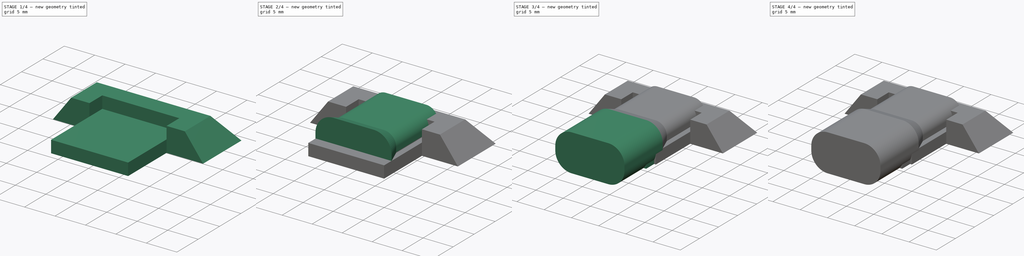
[diagram: build sequence overview — one tinted view per stage of 4, left to right]
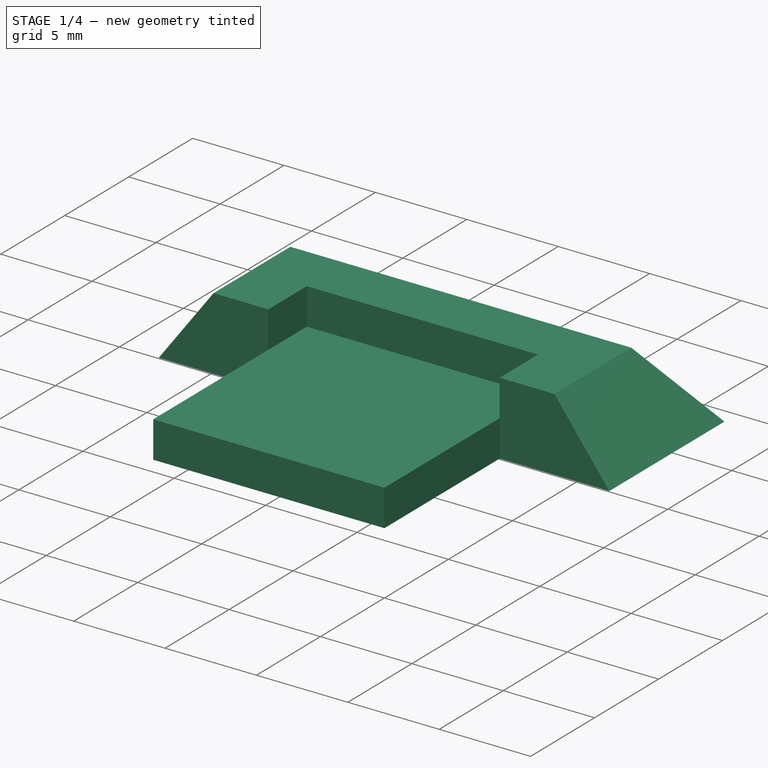
[diagram: stage 1 of 4 — iso view after this stage's code; geometry added in this stage tinted green]
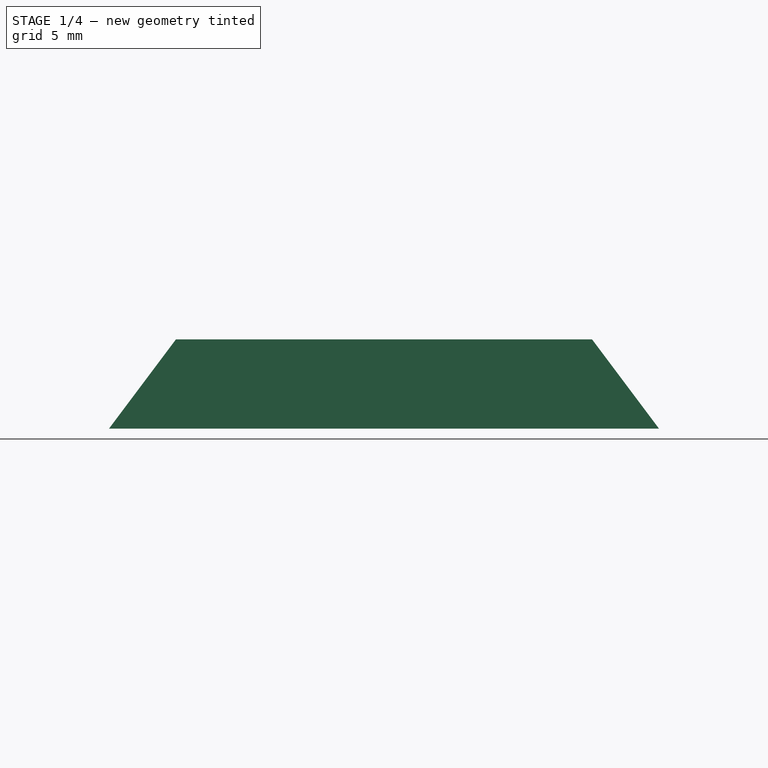
[diagram: stage 1 of 4 — front view after this stage's code; geometry added in this stage tinted green]
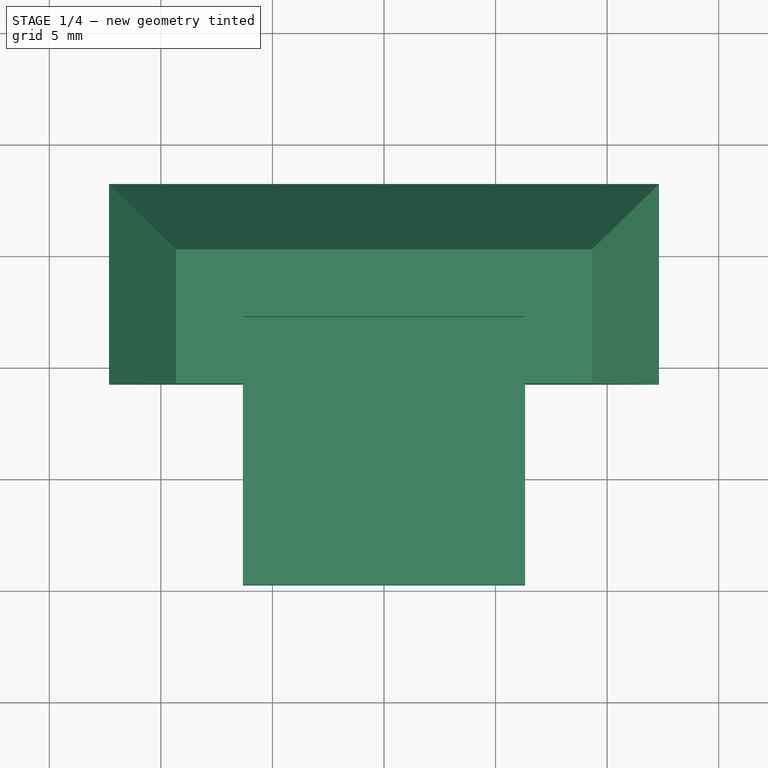
[diagram: stage 1 of 4 — top view after this stage's code; geometry added in this stage tinted green]
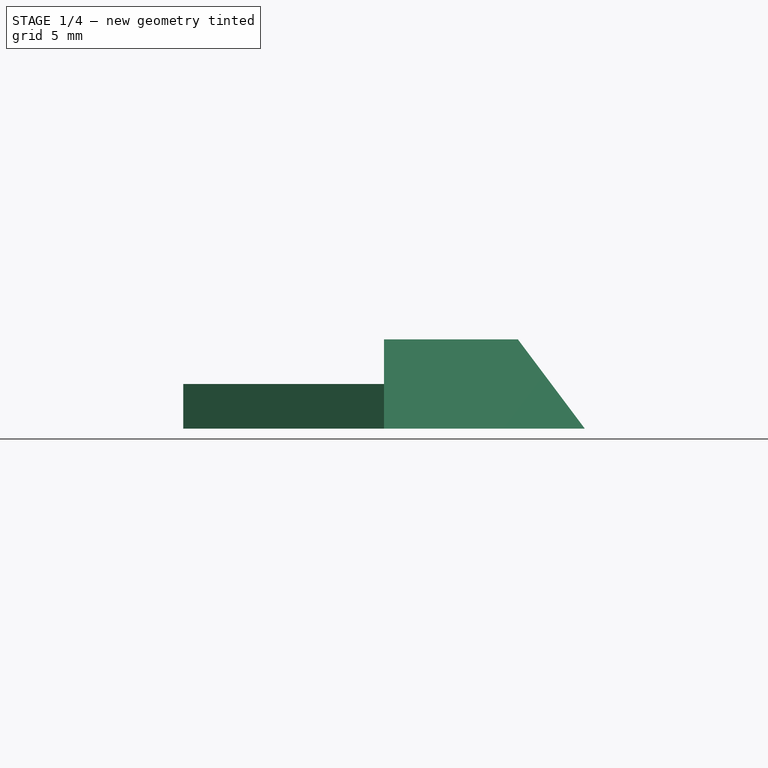
[diagram: stage 1 of 4 — right view after this stage's code; geometry added in this stage tinted green]
FCSTD DOCUMENT  (FreeCAD 0.21R33668 +26 (Git))
Label: USBC-Breakout
License: All rights reserved
LicenseURL: http://en.wikipedia.org/wiki/All_rights_reserved
objects: Sketcher::SketchObject×8, PartDesign::Pad×5, PartDesign::Body×3, Part::Refine×3, PartDesign::AdditiveLoft×2, PartDesign::Pocket×1, PartDesign::LinearPattern×1, Spreadsheet::Sheet×1
note: 31 computed .brp shape members not serialized (recipe doc carries the construction recipe); baked Part::Feature solids carry a one-line shape summary decoded from their .brp

FEATURE [PartDesign::Body] Body  label="USBCBreakout"
  Group = -> [Sketch,Pad,Sketch001,Pad001,Sketch002,Pocket,LinearPattern]
  Origin = -> Origin
  Tip = -> LinearPattern
FEATURE [Part::Refine] Body001  label="USBCBreakoutNice"
  Source = -> Body
FEATURE [Spreadsheet::Sheet] Spreadsheet  label="S"
  cells = A1='Label; B1='Value; C1='Type; D1='Description; A2='StopperThk; B2(StopperThk)==3 mm; C2='Input; D2='Thickness of the stopper wall; A3='StopperHei; B3(StopperHei)==4 mm; C3='Input; D3='Height of the stopper off the floor; A4='StopperLen; B4(StopperLen)==3 mm; C4='Input; D4='Length that the stopper extends from the end; A5='LifterLen; B5(LifterLen)==12 mm; C5='Input; D5='Lifting pad to prop up the breakout board; A6='LifterHei; B6(LifterHei)==2 mm; C6='Input; D6='Lifting pad to prop up the breakout board; A8='USBWid; B8(USBWid)==10.7 mm; C8='Input; D8='USB-C Connector cutout; A9='USBHei; B9(USBHei)==4.8 mm; C9='Input; D9='USB-C Connector cutout; A10='USBRad; B10(USBRad)==2 mm; C10='Input; D10='USB-C Connector cutout; A11='USBChamDim1; B11(USBChamDim1)==1 mm; C11='Input; D11='USBC Connector Chamfer; A12='USBChamDim2; B12(USBChamDim2)==3 mm; C12='Input; A13='USBLen; B13(USBLen)==10 mm; C13='Input; D13='Length of the USB Connector cutout to penetrate wall
FEATURE [Sketcher::SketchObject] Sketch003
  AttachmentOffset = pos=(0,0,4) rot=(0,0,1;0rad)
  FullyConstrained = true
  MapMode = 5
  Placement = pos=(0,0,4) rot=(0,0,1;0rad)
  Support = -> [XY_Plane001]
  expr: .AttachmentOffset.Base.z = <<S>>.StopperHei
  expr: Constraints[17] = <<S>>.StopperThk
  expr: Constraints[18] = <<S>>.StopperLen
  expr: Constraints[23] = <<S>>.StopperThk
  sketch-geometry (9):
    g0: LineSegment StartX=-9.325 StartY=10.25 StartZ=0 EndX=9.325 EndY=10.25 EndZ=0
    g1: LineSegment StartX=9.325 StartY=10.25 StartZ=0 EndX=9.325 EndY=4.25 EndZ=0
    g2: LineSegment StartX=9.325 StartY=4.25 StartZ=0 EndX=6.325 EndY=4.25 EndZ=0
    g3: LineSegment StartX=6.325 StartY=4.25 StartZ=0 EndX=6.325 EndY=7.25 EndZ=0
    g4: LineSegment StartX=6.325 StartY=7.25 StartZ=0 EndX=-6.325 EndY=7.25 EndZ=0
    g5: LineSegment StartX=-6.325 StartY=7.25 StartZ=0 EndX=-6.325 EndY=4.25 EndZ=0
    g6: LineSegment StartX=-6.325 StartY=4.25 StartZ=0 EndX=-9.325 EndY=4.25 EndZ=0
    g7: LineSegment StartX=-9.325 StartY=4.25 StartZ=0 EndX=-9.325 EndY=10.25 EndZ=0
    g8: GeomPoint X=0 Y=7.25 Z=0
  constraints (25):
    c: Horizontal(g0)
    c: Coincident(g0,g1)
    c: Vertical(g1)
    c: Coincident(g1,g2)
    c: Horizontal(g2)
    c: Coincident(g2,g3)
    c: Vertical(g3)
    c: Coincident(g3,g4)
    c: Horizontal(g4)
    c: Coincident(g4,g5)
    c: Coincident(g5,g6)
    c: Horizontal(g6)
    c: Coincident(g6,g7)
    c: Coincident(g7,g0)
    c: Vertical(g7)
    c: Vertical(g5)
    c: Equal(g6,g2)
    c: DistanceX(g2,g2) = 3
    c: DistanceY(g3,g3) = 3
    c: Equal(g3,g5)
    c: PointOnObject(g8,g-2)
    c: DistanceY(g-1,g8) = 7.25
    c: Symmetric(g4,g3,g8)
    c: DistanceY(g3,g0) = 3
    c: DistanceX(g4,g4) = 12.65
FEATURE [Sketcher::SketchObject] Sketch004
  FullyConstrained = true
  MapMode = 5
  Support = -> [XY_Plane001]
  expr: Constraints[17] = <<S>>.StopperThk * 2
  expr: Constraints[18] = <<S>>.StopperLen
  expr: Constraints[23] = <<S>>.StopperThk * 2
  sketch-geometry (9):
    g0: LineSegment StartX=-12.325 StartY=13.25 StartZ=0 EndX=12.325 EndY=13.25 EndZ=0
    g1: LineSegment StartX=12.325 StartY=13.25 StartZ=0 EndX=12.325 EndY=4.25 EndZ=0
    g2: LineSegment StartX=12.325 StartY=4.25 StartZ=0 EndX=6.325 EndY=4.25 EndZ=0
    g3: LineSegment StartX=6.325 StartY=4.25 StartZ=0 EndX=6.325 EndY=7.25 EndZ=0
    g4: LineSegment StartX=6.325 StartY=7.25 StartZ=0 EndX=-6.325 EndY=7.25 EndZ=0
    g5: LineSegment StartX=-6.325 StartY=7.25 StartZ=0 EndX=-6.325 EndY=4.25 EndZ=0
    g6: LineSegment StartX=-6.325 StartY=4.25 StartZ=0 EndX=-12.325 EndY=4.25 EndZ=0
    g7: LineSegment StartX=-12.325 StartY=4.25 StartZ=0 EndX=-12.325 EndY=13.25 EndZ=0
    g8: GeomPoint X=0 Y=7.25 Z=0
  constraints (25):
    c: Horizontal(g0)
    c: Coincident(g0,g1)
    c: Vertical(g1)
    c: Coincident(g1,g2)
    c: Horizontal(g2)
    c: Coincident(g2,g3)
    c: Vertical(g3)
    c: Coincident(g3,g4)
    c: Horizontal(g4)
    c: Coincident(g4,g5)
    c: Coincident(g5,g6)
    c: Horizontal(g6)
    c: Coincident(g6,g7)
    c: Coincident(g7,g0)
    c: Vertical(g7)
    c: Vertical(g5)
    c: Equal(g6,g2)
    c: DistanceX(g2,g2) = 6
    c: DistanceY(g3,g3) = 3
    c: Equal(g3,g5)
    c: PointOnObject(g8,g-2)
    c: DistanceY(g-1,g8) = 7.25
    c: Symmetric(g4,g3,g8)
    c: DistanceY(g3,g0) = 6
    c: DistanceX(g4,g4) = 12.65
FEATURE [PartDesign::AdditiveLoft] AdditiveLoft
  Closed = false
  Profile = -> Sketch003
  Ruled = false
  Sections = -> [Sketch004]
FEATURE [PartDesign::Body] Body003  label="StopperCut"
  Group = -> [Sketch005,Sketch006,AdditiveLoft001,Pad002,Pad003]
  Origin = -> Origin002
  Placement = pos=(0,-18,0) rot=(0,0,1;0rad)
  Tip = -> Pad003
FEATURE [Part::Refine] Body005  label="StopperCutNice"
  Source = -> Body003
FEATURE [Sketcher::SketchObject] Sketch007
  ExternalGeometry = -> [AdditiveLoft]
  FullyConstrained = true
  MapMode = 5
  Placement = pos=(0,7.25,0) rot=(1,0,0;1.5708rad)
  Support = -> [AdditiveLoft]
  expr: .Constraints.LifterHei = <<S>>.LifterHei
  sketch-geometry (4):
    g0: LineSegment StartX=-6.325 StartY=0 StartZ=0 EndX=6.325 EndY=0 EndZ=0
    g1: LineSegment StartX=6.325 StartY=0 StartZ=0 EndX=6.325 EndY=2 EndZ=0
    g2: LineSegment StartX=6.325 StartY=2 StartZ=0 EndX=-6.325 EndY=2 EndZ=0
    g3: LineSegment StartX=-6.325 StartY=2 StartZ=0 EndX=-6.325 EndY=0 EndZ=0
  constraints (10):
    c: Coincident(g0,g1)
    c: Coincident(g1,g2)
    c: Coincident(g2,g3)
    c: Coincident(g3,g0)
    c: Horizontal(g2)
    c: Vertical(g1)
    c: Vertical(g3)
    c: Coincident(g0,g-3)
    c: Coincident(g0,g-3)
    c: DistanceY(g1,g1) = 2  'LifterHei'
FEATURE [PartDesign::Pad] Pad004
  BaseFeature = -> AdditiveLoft
  Direction = (0,-1,2e-16)
  Length = 12
  Length2 = 10
  Profile = -> Sketch007
  ReferenceAxis = -> Sketch007 [N_Axis]
  Type = 0
  expr: Length = <<S>>.LifterLen
FEATURE [PartDesign::Body] Body002  label="StopperAdd"
  Group = -> [Sketch003,Sketch004,AdditiveLoft,Sketch007,Pad004]
  Origin = -> Origin001
  Tip = -> Pad004
FEATURE [Part::Refine] Body004  label="StopperAddNice"
  Source = -> Body002
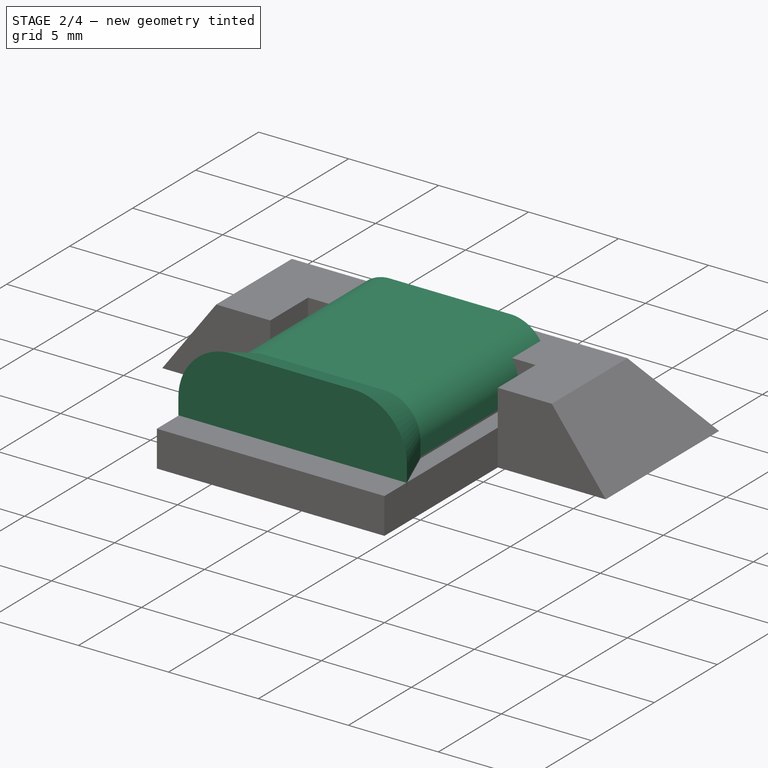
[diagram: stage 2 of 4 — iso view after this stage's code; geometry added in this stage tinted green]
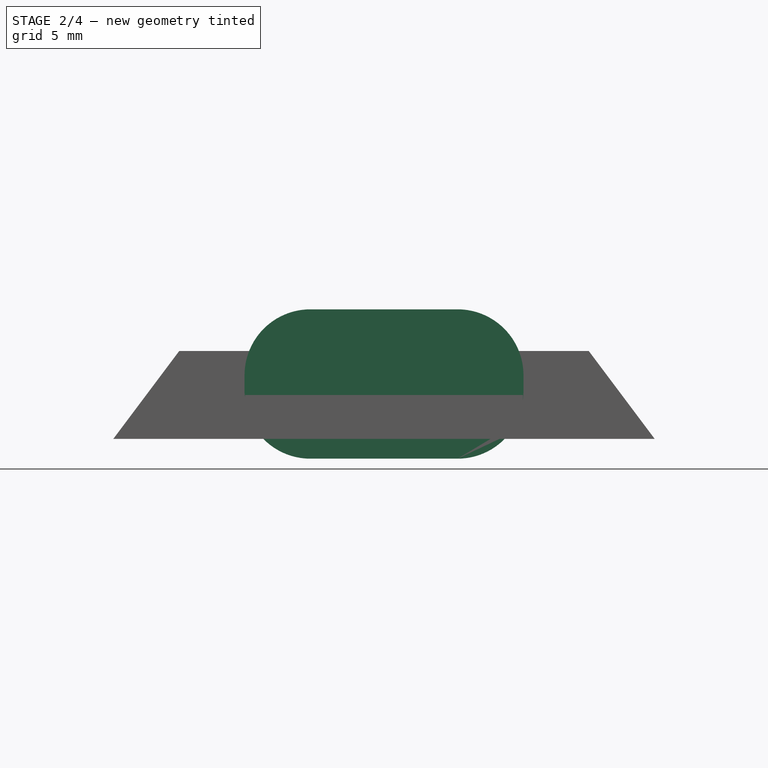
[diagram: stage 2 of 4 — front view after this stage's code; geometry added in this stage tinted green]
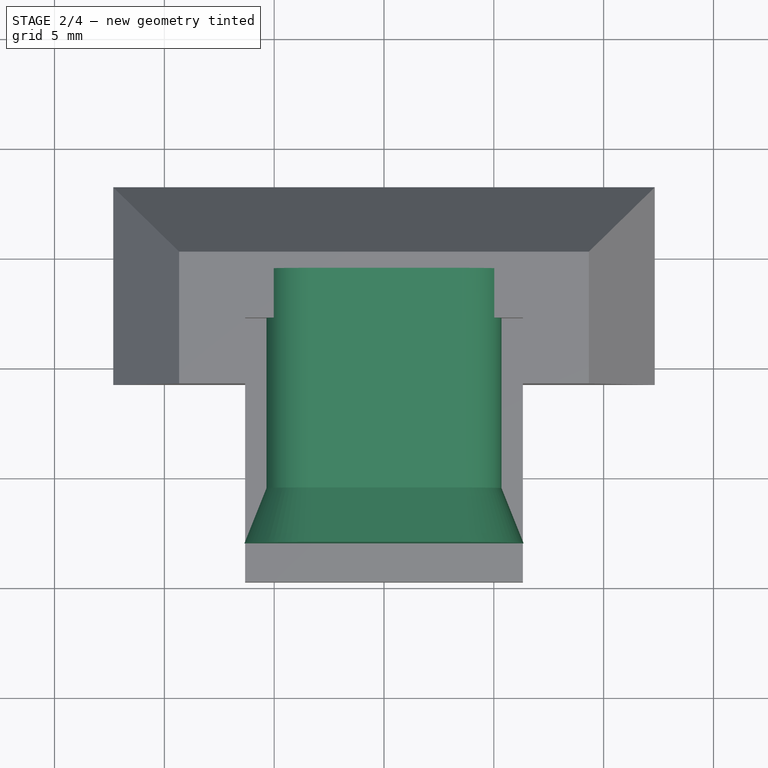
[diagram: stage 2 of 4 — top view after this stage's code; geometry added in this stage tinted green]
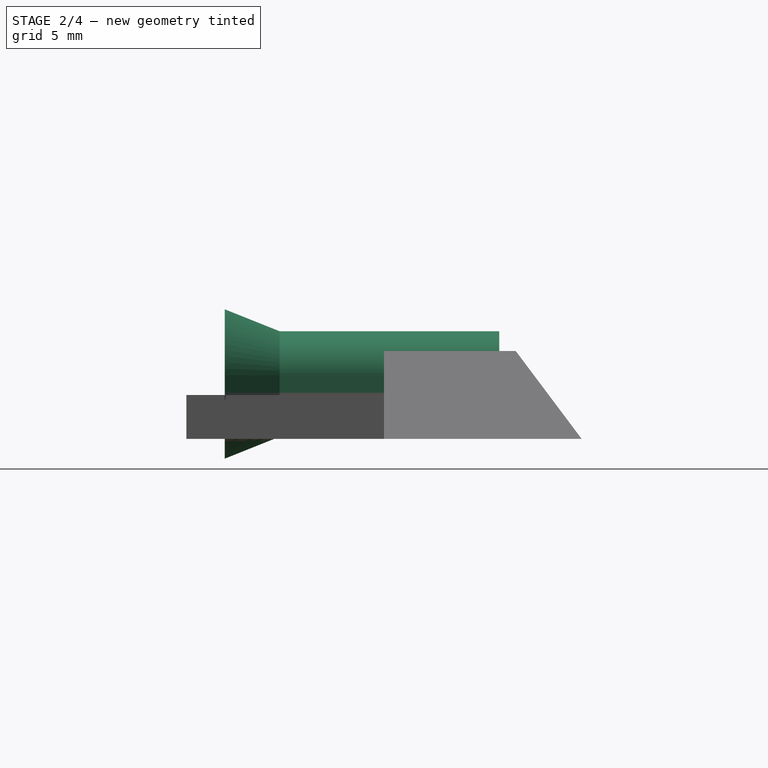
[diagram: stage 2 of 4 — right view after this stage's code; geometry added in this stage tinted green]
FEATURE [Sketcher::SketchObject] Sketch005  label="SketchOD"
  AttachmentOffset = pos=(0,0,3) rot=(0,0,1;0rad)
  FullyConstrained = true
  MapMode = 5
  Placement = pos=(0,-3,-7e-16) rot=(1,0,0;1.5708rad)
  Support = -> [XZ_Plane002]
  expr: .AttachmentOffset.Base.z = <<S>>.USBChamDim2
  expr: .Constraints.USBHei = <<S>>.USBHei + <<S>>.USBChamDim1 * 2
  expr: .Constraints.USBRad = <<S>>.USBRad + <<S>>.USBChamDim1
  expr: .Constraints.USBWid = <<S>>.USBWid + <<S>>.USBChamDim1 * 2
  sketch-geometry (11):
    g0: ArcOfCircle CenterX=-3.35 CenterY=2.9 CenterZ=0 NormalX=0 NormalY=0 NormalZ=1 AngleXU=0 Radius=3 StartAngle=1.5708 EndAngle=3.14159
    g1: LineSegment StartX=-3.35 StartY=5.9 StartZ=0 EndX=3.35 EndY=5.9 EndZ=0
    g2: ArcOfCircle CenterX=3.35 CenterY=2.9 CenterZ=0 NormalX=0 NormalY=0 NormalZ=1 AngleXU=0 Radius=3 StartAngle=1.124e-13 EndAngle=1.5708
    g3: LineSegment StartX=6.35 StartY=2.9 StartZ=0 EndX=6.35 EndY=2.1 EndZ=0
    g4: ArcOfCircle CenterX=3.35 CenterY=2.1 CenterZ=0 NormalX=0 NormalY=0 NormalZ=1 AngleXU=0 Radius=3 StartAngle=4.71239 EndAngle=6.28319
    g5: LineSegment StartX=3.35 StartY=-0.9 StartZ=0 EndX=-3.35 EndY=-0.9 EndZ=0
    g6: ArcOfCircle CenterX=-3.35 CenterY=2.1 CenterZ=0 NormalX=0 NormalY=0 NormalZ=1 AngleXU=0 Radius=3 StartAngle=3.14159 EndAngle=4.71239
    g7: LineSegment StartX=-6.35 StartY=2.1 StartZ=0 EndX=-6.35 EndY=2.9 EndZ=0
    g8: GeomPoint X=-6.35 Y=5.9 Z=0
    g9: GeomPoint X=6.35 Y=-0.9 Z=0
    g10: GeomPoint X=0 Y=2.5 Z=0
  constraints (25):
    c: Tangent(g0,g1) = 1.5708
    c: Tangent(g1,g2) = 1.5708
    c: Tangent(g2,g3) = 1.5708
    c: Tangent(g3,g4) = 1.5708
    c: Tangent(g4,g5) = 1.5708
    c: Tangent(g5,g6) = 1.5708
    c: Tangent(g6,g7) = 1.5708
    c: Tangent(g7,g0) = 1.5708
    c: Horizontal(g1)
    c: Horizontal(g5)
    c: Vertical(g3)
    c: Vertical(g7)
    c: Equal(g0,g2)
    c: Equal(g2,g4)
    c: Equal(g4,g6)
    c: PointOnObject(g8,g1)
    c: PointOnObject(g8,g7)
    c: PointOnObject(g9,g3)
    c: PointOnObject(g9,g5)
    c: Radius(g2) = 3  'USBRad'
    c: DistanceX(g8,g9) = 12.7  'USBWid'
    c: DistanceY(g9,g8) = 6.8  'USBHei'
    c: PointOnObject(g10,g-2)
    c: DistanceY(g-1,g10) = 2.5
    c: Symmetric(g8,g9,g10)
FEATURE [Sketcher::SketchObject] Sketch006  label="SketchID"
  AttachmentOffset = pos=(0,0,0.5) rot=(0,0,1;0rad)
  FullyConstrained = true
  MapMode = 5
  Placement = pos=(0,-0.5,-1e-16) rot=(1,0,0;1.5708rad)
  Support = -> [XZ_Plane002]
  expr: .Constraints.USBHei = <<S>>.USBHei
  expr: .Constraints.USBRad = <<S>>.USBRad
  expr: .Constraints.USBWid = <<S>>.USBWid
  sketch-geometry (11):
    g0: ArcOfCircle CenterX=-3.35 CenterY=2.9 CenterZ=0 NormalX=0 NormalY=0 NormalZ=1 AngleXU=0 Radius=2 StartAngle=1.5708 EndAngle=3.14159
    g1: LineSegment StartX=-3.35 StartY=4.9 StartZ=0 EndX=3.35 EndY=4.9 EndZ=0
    g2: ArcOfCircle CenterX=3.35 CenterY=2.9 CenterZ=0 NormalX=0 NormalY=0 NormalZ=1 AngleXU=0 Radius=2 StartAngle=0 EndAngle=1.5708
    g3: LineSegment StartX=5.35 StartY=2.9 StartZ=0 EndX=5.35 EndY=2.1 EndZ=0
    g4: ArcOfCircle CenterX=3.35 CenterY=2.1 CenterZ=0 NormalX=0 NormalY=0 NormalZ=1 AngleXU=0 Radius=2 StartAngle=4.71239 EndAngle=6.28319
    g5: LineSegment StartX=3.35 StartY=0.1 StartZ=0 EndX=-3.35 EndY=0.1 EndZ=0
    g6: ArcOfCircle CenterX=-3.35 CenterY=2.1 CenterZ=0 NormalX=0 NormalY=0 NormalZ=1 AngleXU=0 Radius=2 StartAngle=3.14159 EndAngle=4.71239
    g7: LineSegment StartX=-5.35 StartY=2.1 StartZ=0 EndX=-5.35 EndY=2.9 EndZ=0
    g8: GeomPoint X=-5.35 Y=4.9 Z=0
    g9: GeomPoint X=5.35 Y=0.1 Z=0
    g10: GeomPoint X=0 Y=2.5 Z=0
  constraints (25):
    c: Tangent(g0,g1) = 1.5708
    c: Tangent(g1,g2) = 1.5708
    c: Tangent(g2,g3) = 1.5708
    c: Tangent(g3,g4) = 1.5708
    c: Tangent(g4,g5) = 1.5708
    c: Tangent(g5,g6) = 1.5708
    c: Tangent(g6,g7) = 1.5708
    c: Tangent(g7,g0) = 1.5708
    c: Horizontal(g1)
    c: Horizontal(g5)
    c: Vertical(g3)
    c: Vertical(g7)
    c: Equal(g0,g2)
    c: Equal(g2,g4)
    c: Equal(g4,g6)
    c: PointOnObject(g8,g1)
    c: PointOnObject(g8,g7)
    c: PointOnObject(g9,g3)
    c: PointOnObject(g9,g5)
    c: Radius(g2) = 2  'USBRad'
    c: DistanceX(g8,g9) = 10.7  'USBWid'
    c: DistanceY(g9,g8) = 4.8  'USBHei'
    c: PointOnObject(g10,g-2)
    c: DistanceY(g-1,g10) = 2.5
    c: Symmetric(g8,g9,g10)
FEATURE [PartDesign::AdditiveLoft] AdditiveLoft001
  Closed = false
  Placement = pos=(0,0,0) rot=(1,0,0;1.5708rad)
  Profile = -> Sketch005
  Ruled = false
  Sections = -> [Sketch006]
FEATURE [PartDesign::Pad] Pad002  label="PadInside"
  BaseFeature = -> AdditiveLoft001
  Direction = (0,1,2e-16)
  Length = 10
  Length2 = 10
  Placement = pos=(0,0,0) rot=(1,0,0;1.5708rad)
  Profile = -> AdditiveLoft001 [Face3]
  Type = 0
  expr: Length = <<S>>.USBLen
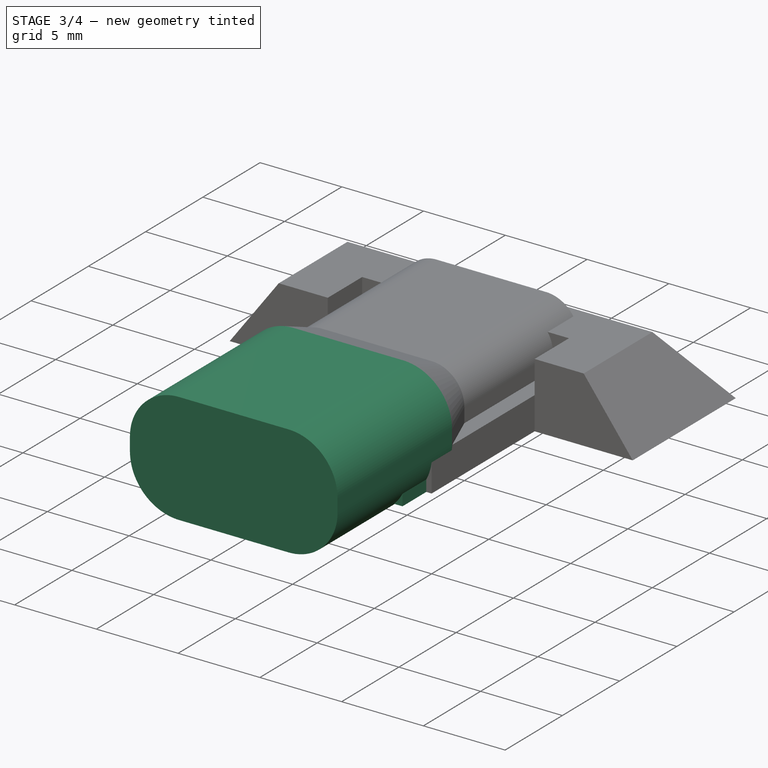
[diagram: stage 3 of 4 — iso view after this stage's code; geometry added in this stage tinted green]
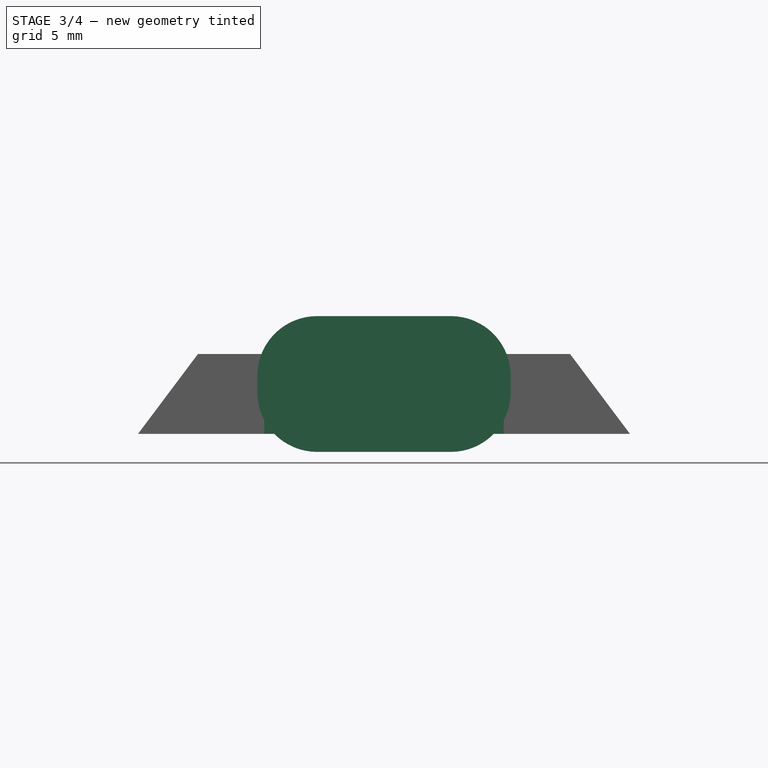
[diagram: stage 3 of 4 — front view after this stage's code; geometry added in this stage tinted green]
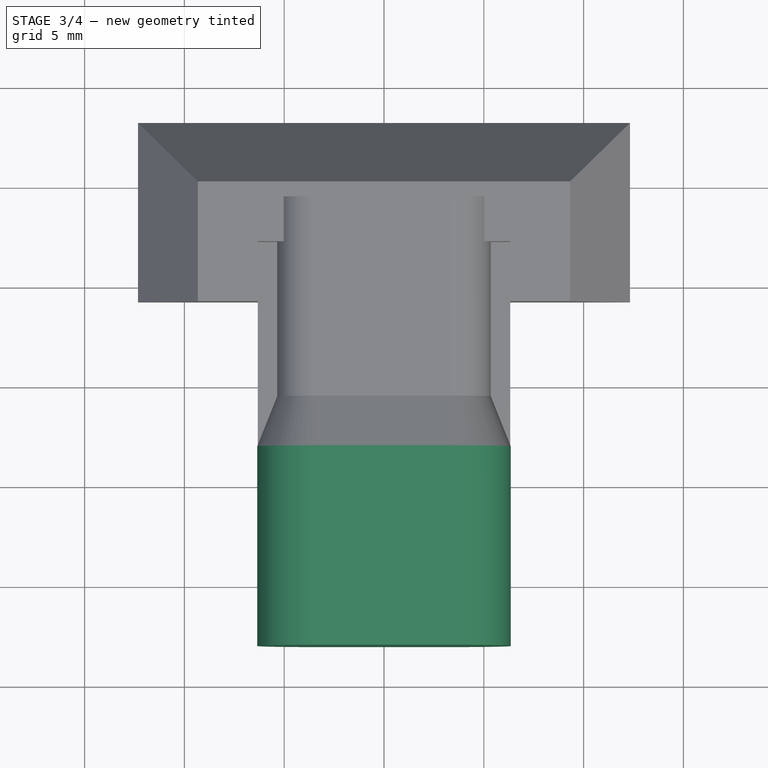
[diagram: stage 3 of 4 — top view after this stage's code; geometry added in this stage tinted green]
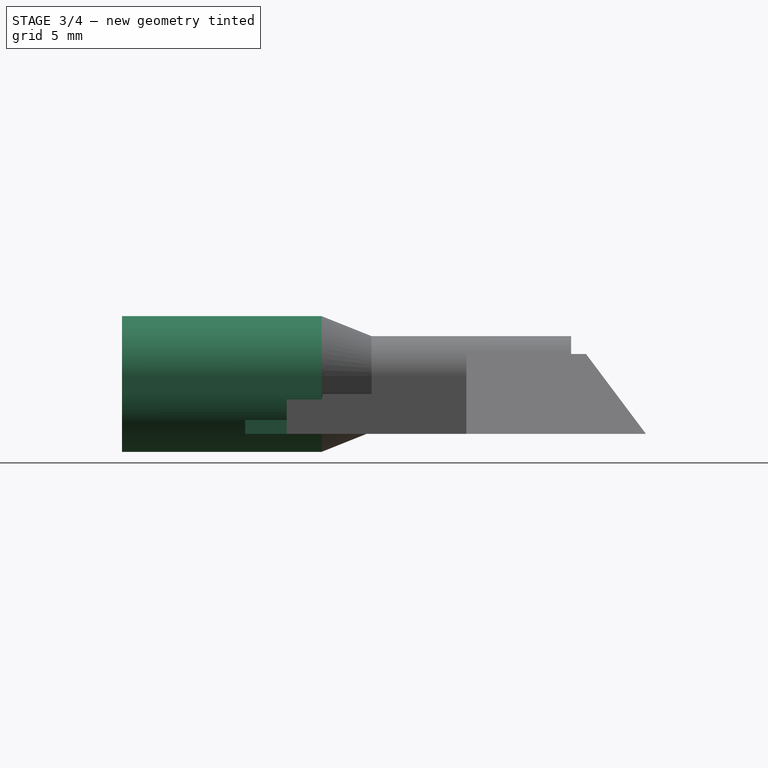
[diagram: stage 3 of 4 — right view after this stage's code; geometry added in this stage tinted green]
FEATURE [Sketcher::SketchObject] Sketch
  FullyConstrained = true
  MapMode = 5
  Support = -> [XY_Plane]
  sketch-geometry (4):
    g0: LineSegment StartX=-6 StartY=6.83 StartZ=0 EndX=6 EndY=6.83 EndZ=0
    g1: LineSegment StartX=6 StartY=6.83 StartZ=0 EndX=6 EndY=-6.83 EndZ=0
    g2: LineSegment StartX=6 StartY=-6.83 StartZ=0 EndX=-6 EndY=-6.83 EndZ=0
    g3: LineSegment StartX=-6 StartY=-6.83 StartZ=0 EndX=-6 EndY=6.83 EndZ=0
  constraints (11):
    c: Coincident(g0,g1)
    c: Coincident(g1,g2)
    c: Coincident(g2,g3)
    c: Coincident(g3,g0)
    c: Horizontal(g0)
    c: Horizontal(g2)
    c: Vertical(g1)
    c: Vertical(g3)
    c: Symmetric(g0,g1,g-1)
    c: DistanceX(g0,g0) = 12
    c: DistanceY(g3,g3) = 13.66
FEATURE [PartDesign::Pad] Pad  label="Board"
  Direction = (0,0,1)
  Length = 1
  Length2 = 10
  Profile = -> Sketch
  ReferenceAxis = -> Sketch [N_Axis]
  Type = 0
FEATURE [Sketcher::SketchObject] Sketch001
  AttachmentOffset = pos=(0,0,0.7) rot=(0,0,1;0rad)
  FullyConstrained = true
  MapMode = 5
  Placement = pos=(0,-7.53,2e-16) rot=(1,0,0;1.5708rad)
  Support = -> [Pad]
  sketch-geometry (11):
    g0: LineSegment StartX=-3.25 StartY=4 StartZ=0 EndX=3.25 EndY=4 EndZ=0
    g1: LineSegment StartX=4.5 StartY=2.75 StartZ=0 EndX=4.5 EndY=2.25 EndZ=0
    g2: LineSegment StartX=3.25 StartY=1 StartZ=0 EndX=-3.25 EndY=1 EndZ=0
    g3: LineSegment StartX=-4.5 StartY=2.25 StartZ=0 EndX=-4.5 EndY=2.75 EndZ=0
    g4: ArcOfCircle CenterX=-3.25 CenterY=2.75 CenterZ=0 NormalX=0 NormalY=0 NormalZ=1 AngleXU=0 Radius=1.25 StartAngle=1.5708 EndAngle=3.14159
    g5: GeomPoint X=-4.5 Y=4 Z=0
    g6: ArcOfCircle CenterX=3.25 CenterY=2.25 CenterZ=0 NormalX=0 NormalY=0 NormalZ=1 AngleXU=0 Radius=1.25 StartAngle=4.71239 EndAngle=6.28319
    g7: GeomPoint X=4.5 Y=1 Z=0
    g8: ArcOfCircle CenterX=3.25 CenterY=2.75 CenterZ=0 NormalX=0 NormalY=0 NormalZ=1 AngleXU=0 Radius=1.25 StartAngle=0 EndAngle=1.5708
    g9: ArcOfCircle CenterX=-3.25 CenterY=2.25 CenterZ=0 NormalX=0 NormalY=0 NormalZ=1 AngleXU=0 Radius=1.25 StartAngle=3.14159 EndAngle=4.71239
    g10: GeomPoint X=0 Y=2.5 Z=0
  constraints (25):
    c: Horizontal(g0)
    c: Horizontal(g2)
    c: Vertical(g1)
    c: Vertical(g3)
    c: PointOnObject(g5,g3)
    c: PointOnObject(g5,g0)
    c: Tangent(g3,g4) = 1.5708
    c: Tangent(g0,g4) = 1.5708
    c: PointOnObject(g7,g2)
    c: PointOnObject(g7,g1)
    c: Tangent(g2,g6) = 1.5708
    c: Tangent(g1,g6) = 1.5708
    c: Tangent(g0,g8) = 1.5708
    c: Tangent(g1,g8) = 1.5708
    c: Tangent(g3,g9) = 1.5708
    c: Tangent(g2,g9) = 1.5708
    c: Equal(g8,g4)
    c: Equal(g8,g6)
    c: Equal(g6,g9)
    c: Radius(g8) = 1.25
    c: DistanceX(g5,g7) = 9
    c: DistanceY(g7,g5) = 3
    c: Symmetric(g5,g7,g10)
    c: Vertical(g10,g-1)
    c: DistanceY(g-1,g10) = 2.5
FEATURE [PartDesign::Pad] Pad001  label="USBC"
  BaseFeature = -> Pad
  Direction = (0,-1,2e-16)
  Length = 7
  Length2 = 10
  Profile = -> Sketch001
  ReferenceAxis = -> Sketch001 [N_Axis]
  Reversed = true
  Type = 0
FEATURE [PartDesign::Pad] Pad003  label="PadOutside"
  BaseFeature = -> Pad002
  Direction = (0,-1,-2e-16)
  Length = 10
  Length2 = 10
  Placement = pos=(0,0,0) rot=(1,0,0;1.5708rad)
  Profile = -> Pad002 [Face1]
  Type = 0
  expr: Length = <<S>>.USBLen
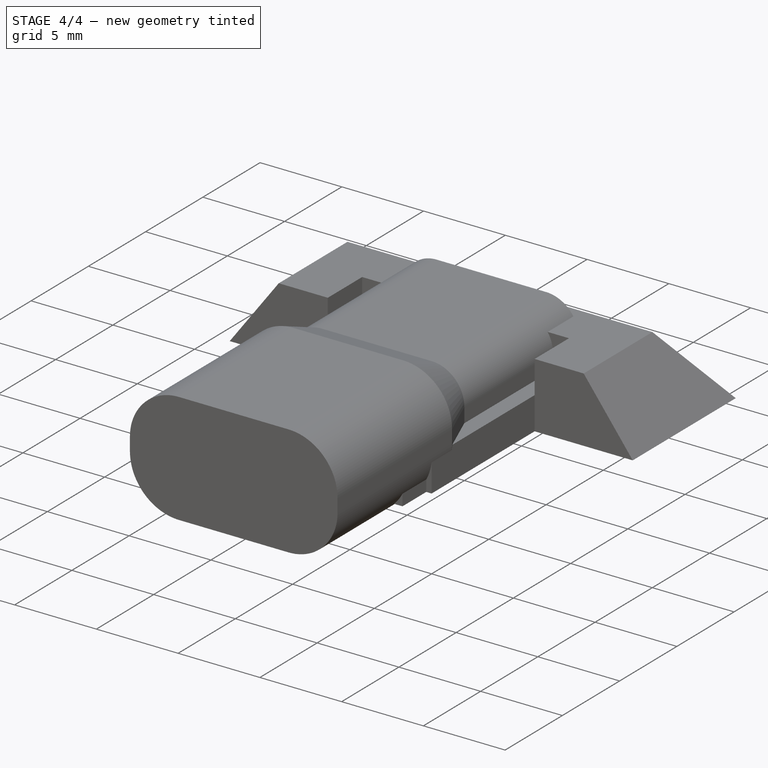
[diagram: stage 4 of 4 — iso view after this stage's code; geometry added in this stage tinted green]
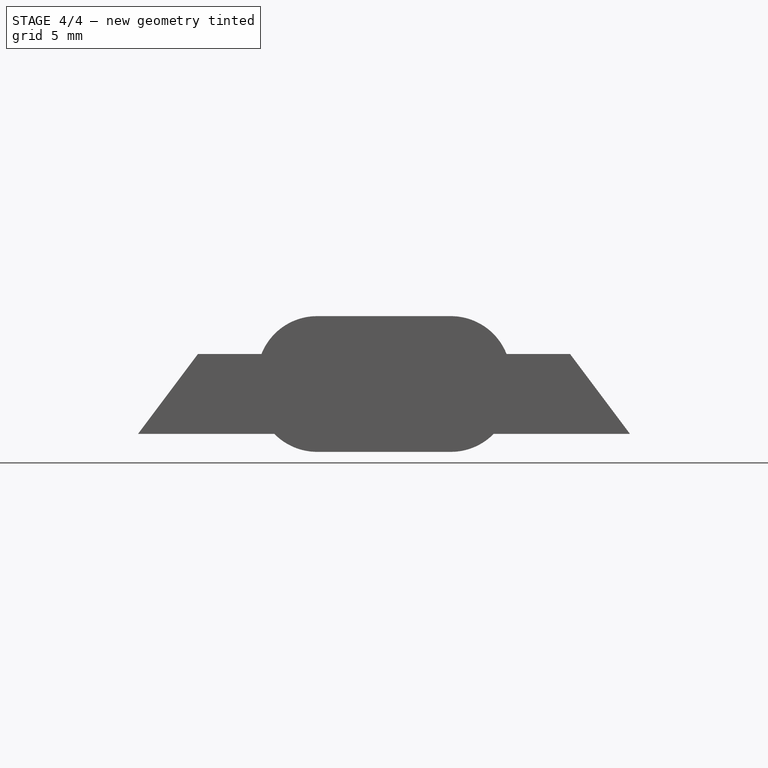
[diagram: stage 4 of 4 — front view after this stage's code; geometry added in this stage tinted green]
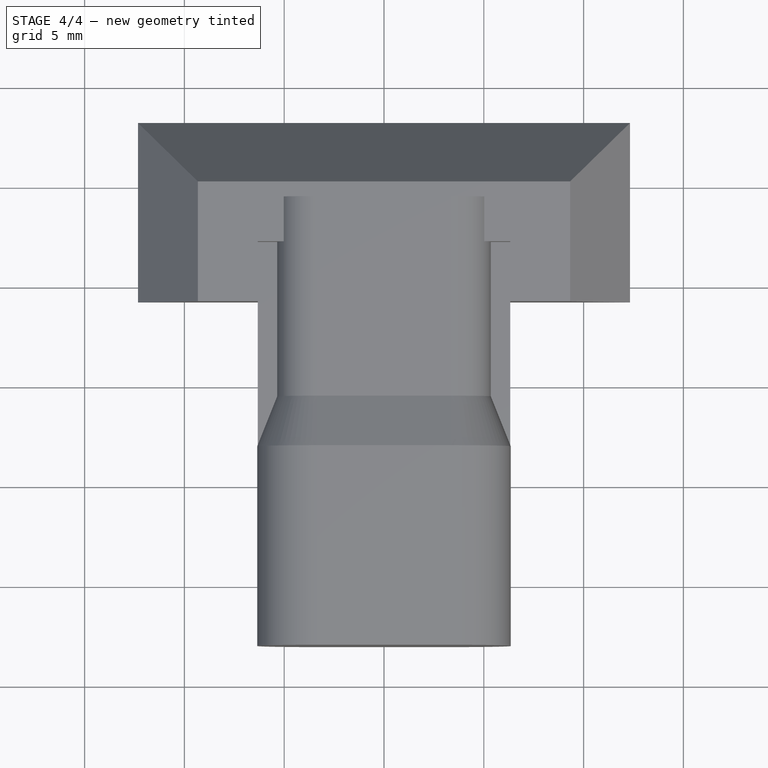
[diagram: stage 4 of 4 — top view after this stage's code; geometry added in this stage tinted green]
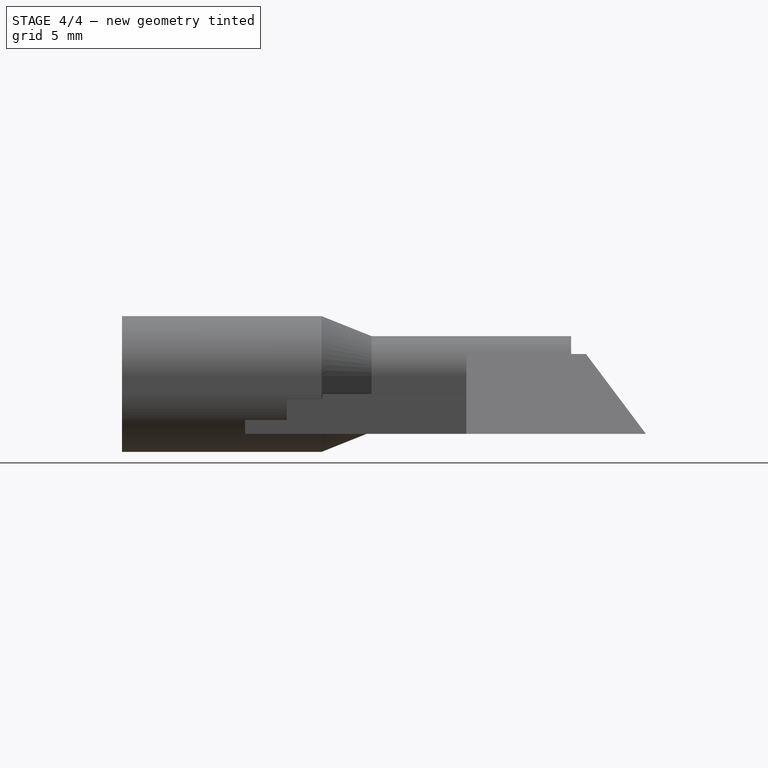
[diagram: stage 4 of 4 — right view after this stage's code; geometry added in this stage tinted green]
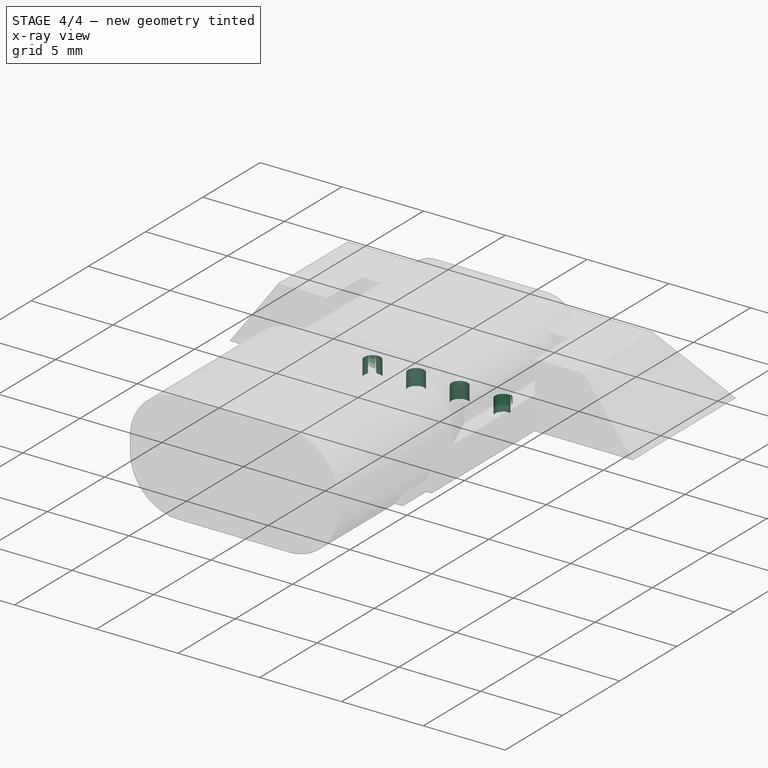
[diagram: stage 4 of 4 — x-ray composite at the iso view; earlier geometry ghosted, this stage's added geometry solid]
FEATURE [Sketcher::SketchObject] Sketch002
  ExternalGeometry = -> [Pad001]
  FullyConstrained = true
  MapMode = 5
  Placement = pos=(0,0,1) rot=(0,0,1;0rad)
  Support = -> [Pad001]
  sketch-geometry (1):
    g0: Circle CenterX=-4 CenterY=4.83 CenterZ=0 NormalX=0 NormalY=0 NormalZ=1 AngleXU=0 Radius=0.5
  constraints (3):
    c: Radius(g0) = 0.5
    c: DistanceX(g-3,g0) = 2
    c: DistanceY(g0,g-3) = 2
FEATURE [PartDesign::Pocket] Pocket  label="Hole"
  BaseFeature = -> Pad001
  Direction = (0,0,-1)
  Length = 5
  Length2 = 5
  Profile = -> Sketch002
  ReferenceAxis = -> Sketch002 [N_Axis]
  Type = 1
FEATURE [PartDesign::LinearPattern] LinearPattern  label="Holes"
  BaseFeature = -> Pocket
  Direction = -> Sketch002 [H_Axis]
  Length = 8
  Occurrences = 4
  Originals = -> [Pocket]
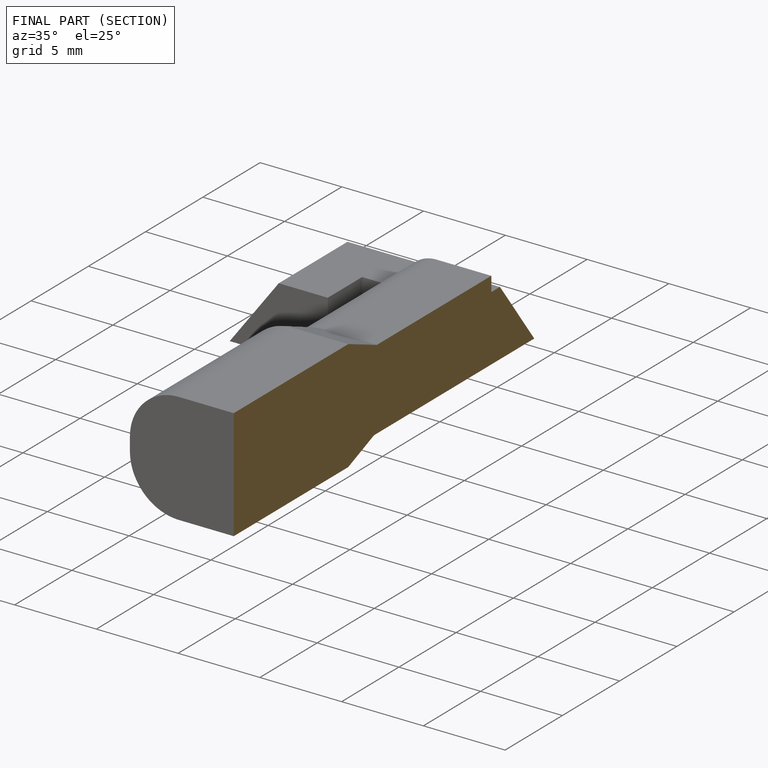
[diagram: finished part — half-section view (interior)]
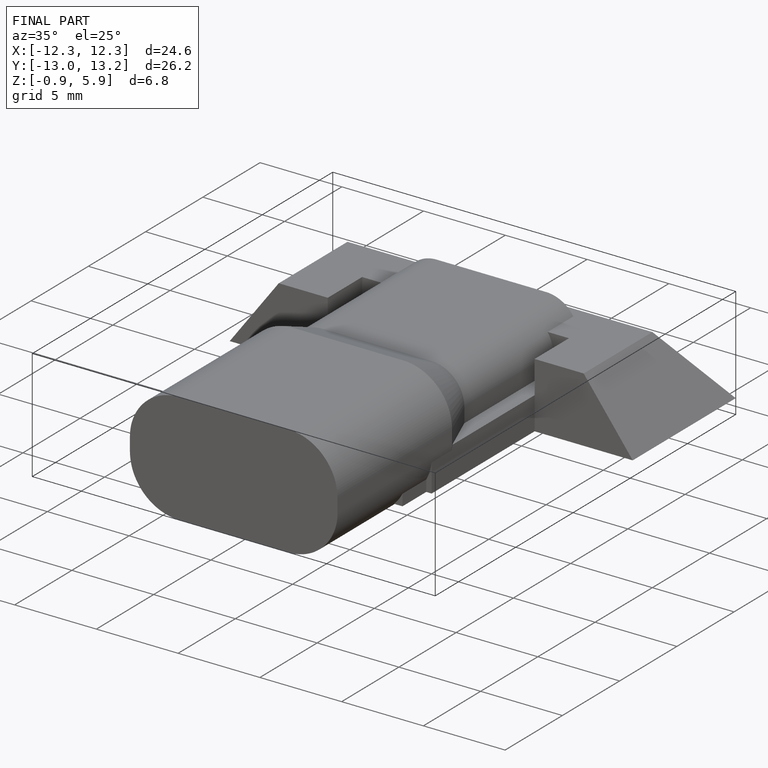
[diagram: finished part — iso view with bounding-box wireframe]
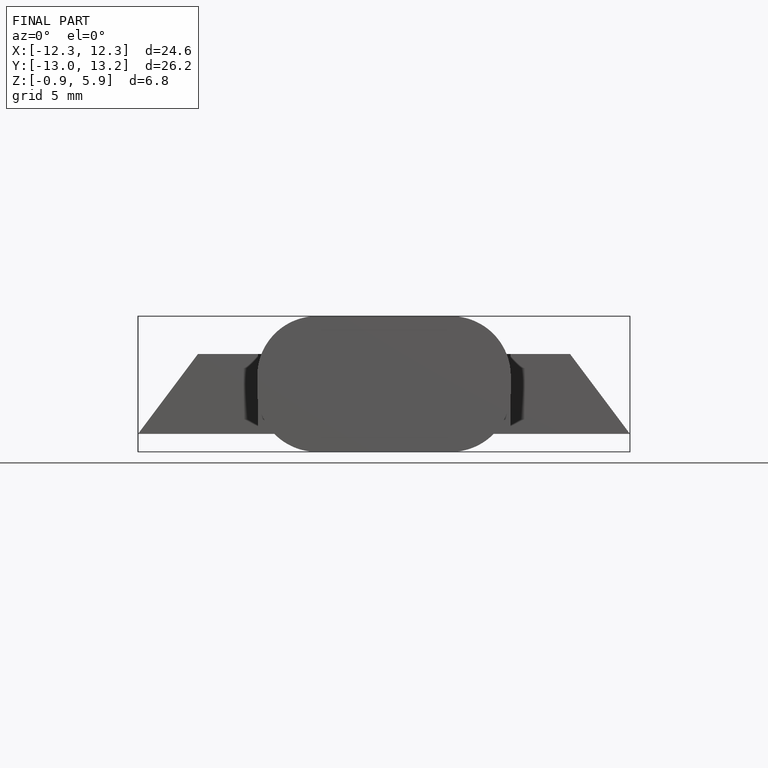
[diagram: finished part — front view with bounding-box wireframe]
